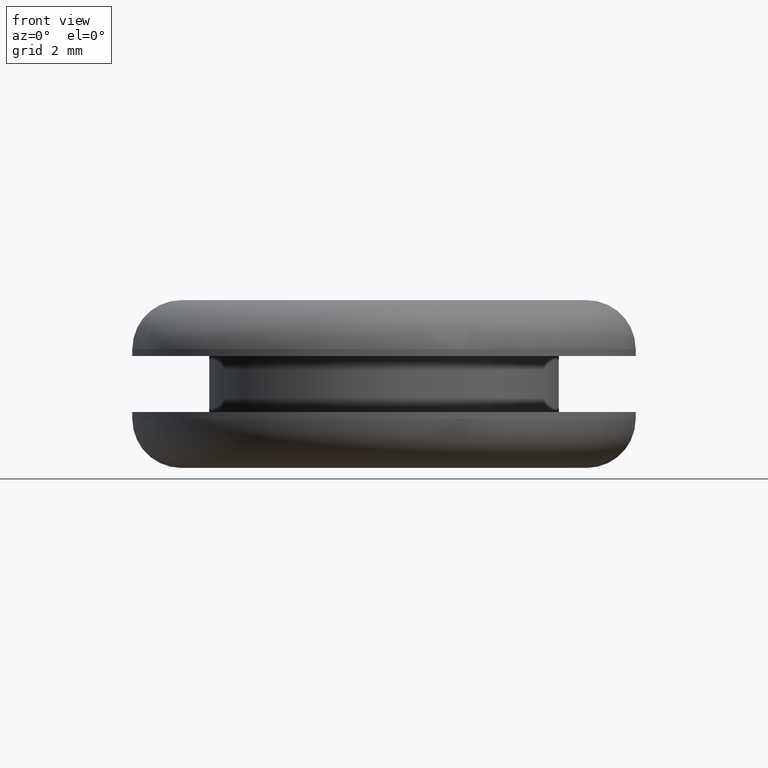
[diagram: clean part render]
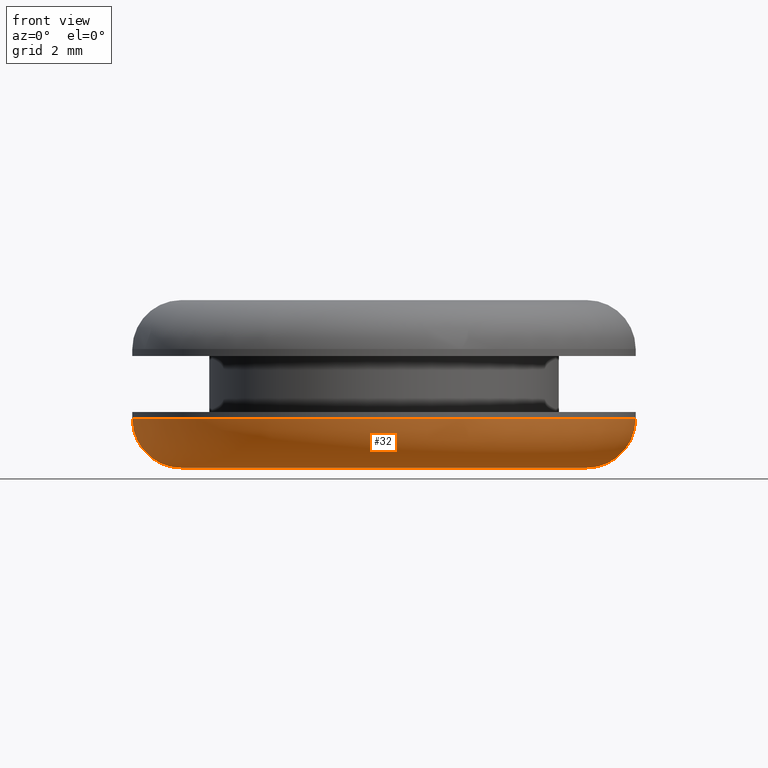
[diagram: same view with one face highlighted and labeled with its STEP entity id]
A machine part, front view. The second image highlights one B-rep face of the part: STEP entity #32.
In plain terms, the highlighted toroidal blend (fillet) surface has major radius 7.25 mm and minor (blend) radius 1.75 mm.
Its self-contained STEP definition (entity closure, byte-faithful):
#9 = EDGE_CURVE ( 'NONE', #172, #178, #96, .T. ) ;
#27 = DIRECTION ( 'NONE',  ( 0.0000000000000000000, 0.0000000000000000000, -1.000000000000000000 ) ) ;
#29 = EDGE_CURVE ( 'NONE', #356, #194, #282, .T. ) ;
#32 = ADVANCED_FACE ( 'NONE', ( #132 ), #304, .T. ) ;
#96 = CIRCLE ( 'NONE', #348, 9.000000000022003700 ) ;
#99 = CARTESIAN_POINT ( 'NONE',  ( 107.7589284890372000, 8.878689293845252600E-016, 131.3788681965059800 ) ) ;
#100 = ORIENTED_EDGE ( 'NONE', *, *, #9, .T. ) ;
#102 = CARTESIAN_POINT ( 'NONE',  ( 107.7589284890372000, 9.950255243099186200E-016, 129.6288681965059800 ) ) ;
#129 = CIRCLE ( 'NONE', #357, 1.750000000000001600 ) ;
#132 = FACE_OUTER_BOUND ( 'NONE', #290, .T. ) ;
#139 = DIRECTION ( 'NONE',  ( 0.0000000000000000000, 0.0000000000000000000, -1.000000000000000000 ) ) ;
#143 = DIRECTION ( 'NONE',  ( -0.0000000000000000000, -1.000000000000000000, -0.0000000000000000000 ) ) ;
#172 = VERTEX_POINT ( 'NONE', #438 ) ;
#178 = VERTEX_POINT ( 'NONE', #294 ) ;
#194 = VERTEX_POINT ( 'NONE', #301 ) ;
#206 = AXIS2_PLACEMENT_3D ( 'NONE', #99, #424, #388 ) ;
#212 = DIRECTION ( 'NONE',  ( 0.0000000000000000000, 0.0000000000000000000, -1.000000000000000000 ) ) ;
#229 = CARTESIAN_POINT ( 'NONE',  ( 100.5089284890152000, 0.0000000000000000000, 131.3788681965059800 ) ) ;
#253 = CIRCLE ( 'NONE', #206, 1.750000000000001600 ) ;
#256 = CARTESIAN_POINT ( 'NONE',  ( 100.5089284890152000, 0.0000000000000000000, 129.6288681965059800 ) ) ;
#282 = CIRCLE ( 'NONE', #418, 7.250000000022002800 ) ;
#289 = DIRECTION ( 'NONE',  ( -1.000000000000000000, 0.0000000000000000000, 0.0000000000000000000 ) ) ;
#290 = EDGE_LOOP ( 'NONE', ( #426, #100, #341, #474 ) ) ;
#294 = CARTESIAN_POINT ( 'NONE',  ( 91.50892848899319200, 0.0000000000000000000, 131.3788681965059800 ) ) ;
#301 = CARTESIAN_POINT ( 'NONE',  ( 93.25892848899319200, 0.0000000000000000000, 129.6288681965059800 ) ) ;
#304 = TOROIDAL_SURFACE ( 'NONE', #472, 7.250000000022000200, 1.750000000000000000 ) ;
#324 = DIRECTION ( 'NONE',  ( -1.000000000000000000, 0.0000000000000000000, 0.0000000000000000000 ) ) ;
#341 = ORIENTED_EDGE ( 'NONE', *, *, #463, .T. ) ;
#348 = AXIS2_PLACEMENT_3D ( 'NONE', #360, #139, #393 ) ;
#356 = VERTEX_POINT ( 'NONE', #102 ) ;
#357 = AXIS2_PLACEMENT_3D ( 'NONE', #363, #143, #396 ) ;
#360 = CARTESIAN_POINT ( 'NONE',  ( 100.5089284890152000, 0.0000000000000000000, 131.3788681965059800 ) ) ;
#363 = CARTESIAN_POINT ( 'NONE',  ( 93.25892848899319200, 0.0000000000000000000, 131.3788681965059800 ) ) ;
#365 = EDGE_CURVE ( 'NONE', #172, #356, #253, .T. ) ;
#388 = DIRECTION ( 'NONE',  ( -1.000000000000000000, -1.224646799147352200E-016, 0.0000000000000000000 ) ) ;
#393 = DIRECTION ( 'NONE',  ( -1.000000000000000000, 0.0000000000000000000, 0.0000000000000000000 ) ) ;
#396 = DIRECTION ( 'NONE',  ( 0.0000000000000000000, 0.0000000000000000000, -1.000000000000000000 ) ) ;
#418 = AXIS2_PLACEMENT_3D ( 'NONE', #256, #27, #289 ) ;
#424 = DIRECTION ( 'NONE',  ( -1.224646799147353200E-016, 1.000000000000000000, 0.0000000000000000000 ) ) ;
#426 = ORIENTED_EDGE ( 'NONE', *, *, #365, .F. ) ;
#438 = CARTESIAN_POINT ( 'NONE',  ( 109.5089284890372000, 1.102182119235312100E-015, 131.3788681965059800 ) ) ;
#463 = EDGE_CURVE ( 'NONE', #178, #194, #129, .T. ) ;
#472 = AXIS2_PLACEMENT_3D ( 'NONE', #229, #212, #324 ) ;
#474 = ORIENTED_EDGE ( 'NONE', *, *, #29, .F. ) ;